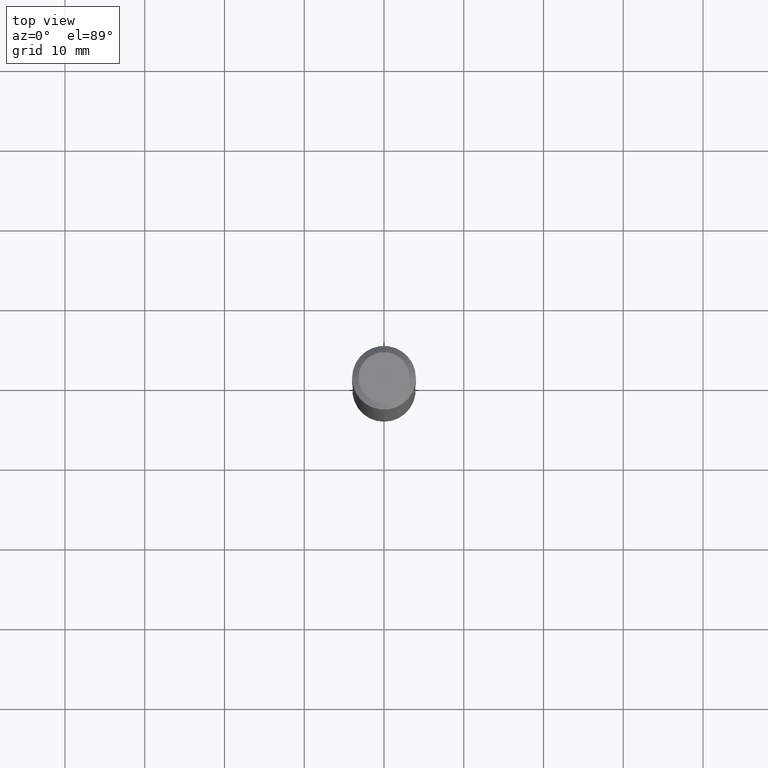
[diagram: clean part render]
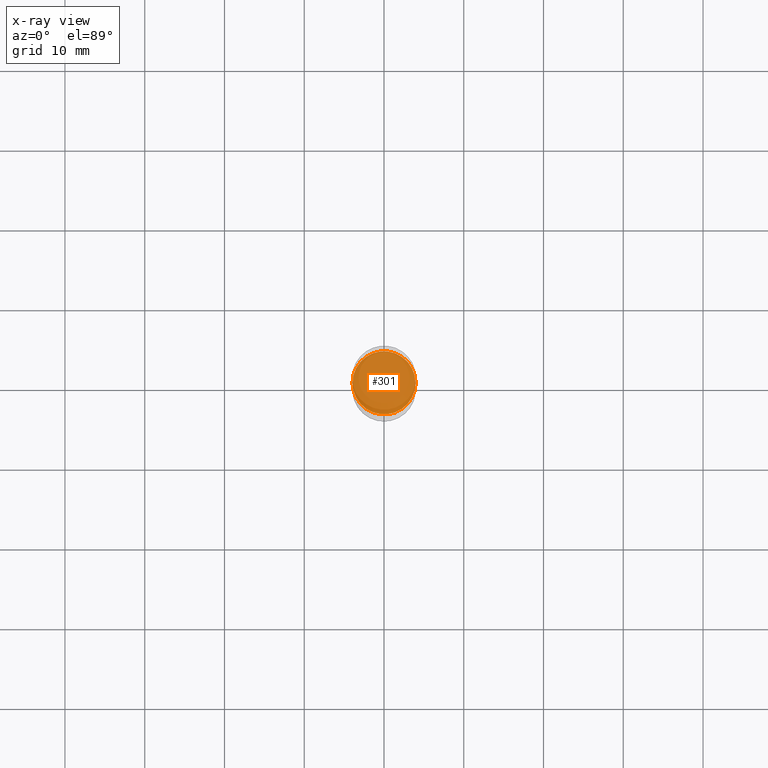
[diagram: x-ray — body ghosted, one internal face saturated and labeled with its STEP entity id]
A machine part, top view, then the same camera in x-ray: the body is ghosted and one INTERNAL B-rep face — a face not visible from any outside direction — is saturated and labeled: STEP entity #301.
In plain terms, the highlighted planar face has unit normal (-0, 0, 1).
Its self-contained STEP definition (entity closure, byte-faithful):
#15 = ORIENTED_EDGE ( 'NONE', *, *, #343, .F. ) ;
#31 = CARTESIAN_POINT ( 'NONE',  ( 3.659399521575439863E-29, -5.224652675444884140E-15, -1.496400000000000396 ) ) ;
#44 = AXIS2_PLACEMENT_3D ( 'NONE', #243, #52, #462 ) ;
#52 = DIRECTION ( 'NONE',  ( -2.445468806185136597E-29, 3.491481338843145583E-15, 1.000000000000000000 ) ) ;
#63 = EDGE_CURVE ( 'NONE', #288, #204, #238, .T. ) ;
#122 = PLANE ( 'NONE',  #341 ) ;
#143 = ORIENTED_EDGE ( 'NONE', *, *, #63, .F. ) ;
#161 = DIRECTION ( 'NONE',  ( -2.438088387897960049E-29, 3.491481338843145188E-15, 1.000000000000000000 ) ) ;
#176 = DIRECTION ( 'NONE',  ( -2.445468806185136597E-29, 3.491481338843145583E-15, 1.000000000000000000 ) ) ;
#184 = CARTESIAN_POINT ( 'NONE',  ( 0.1557499999999999996, -6.312249112494520306E-15, -1.496400000000000396 ) ) ;
#198 = FACE_OUTER_BOUND ( 'NONE', #463, .T. ) ;
#204 = VERTEX_POINT ( 'NONE', #184 ) ;
#235 = DIRECTION ( 'NONE',  ( 1.000000000000000000, -6.982962677686265922E-15, 4.876176775795935793E-29 ) ) ;
#238 = CIRCLE ( 'NONE', #257, 0.1557499999999999996 ) ;
#243 = CARTESIAN_POINT ( 'NONE',  ( 3.659399521575439863E-29, -5.224652675444884140E-15, -1.496400000000000396 ) ) ;
#257 = AXIS2_PLACEMENT_3D ( 'NONE', #31, #176, #295 ) ;
#283 = CARTESIAN_POINT ( 'NONE',  ( 1.826596063597053944E-29, -7.849331543964437645E-15, -1.496400000000000396 ) ) ;
#288 = VERTEX_POINT ( 'NONE', #396 ) ;
#295 = DIRECTION ( 'NONE',  ( 1.000000000000000000, -6.982962677686265922E-15, 0.000000000000000000 ) ) ;
#301 = ADVANCED_FACE ( 'NONE', ( #198 ), #122, .F. ) ;
#341 = AXIS2_PLACEMENT_3D ( 'NONE', #283, #161, #235 ) ;
#343 = EDGE_CURVE ( 'NONE', #204, #288, #479, .T. ) ;
#396 = CARTESIAN_POINT ( 'NONE',  ( -0.1557499999999999996, -4.115333137324417297E-15, -1.496400000000000396 ) ) ;
#462 = DIRECTION ( 'NONE',  ( 1.000000000000000000, -6.982962677686265922E-15, 0.000000000000000000 ) ) ;
#463 = EDGE_LOOP ( 'NONE', ( #15, #143 ) ) ;
#479 = CIRCLE ( 'NONE', #44, 0.1557499999999999996 ) ;